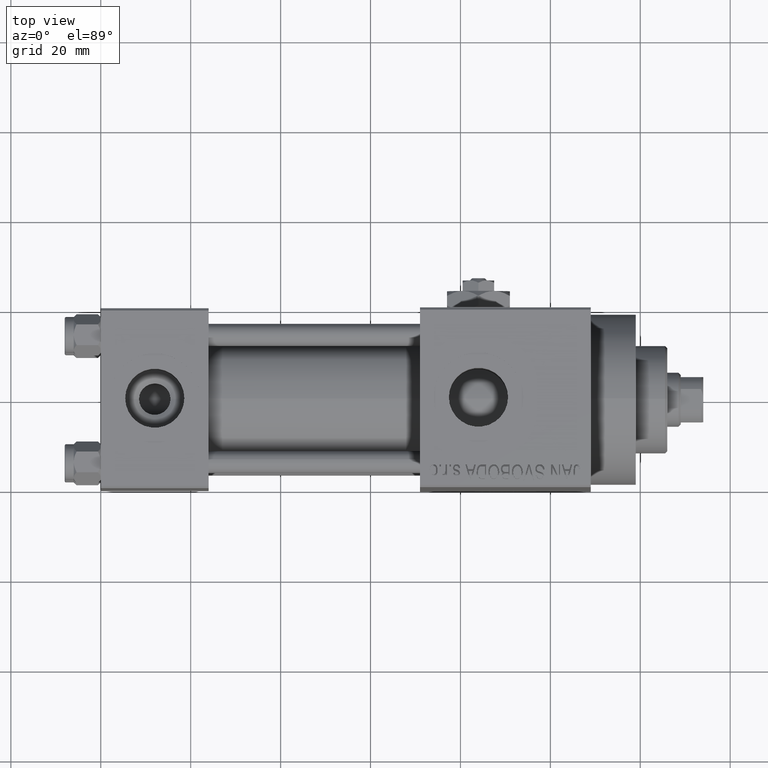
[diagram: clean part render]
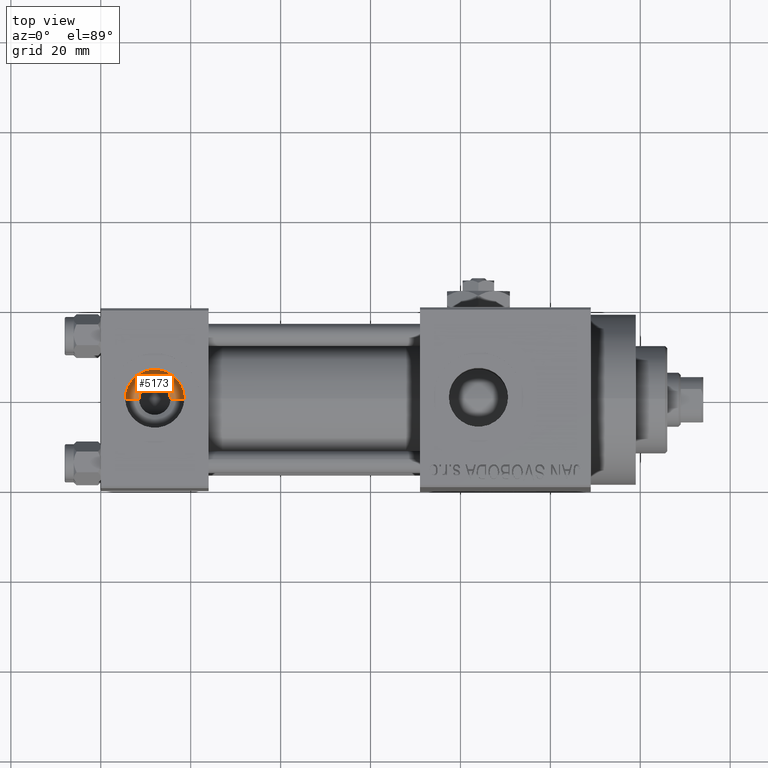
[diagram: same view with one face highlighted and labeled with its STEP entity id]
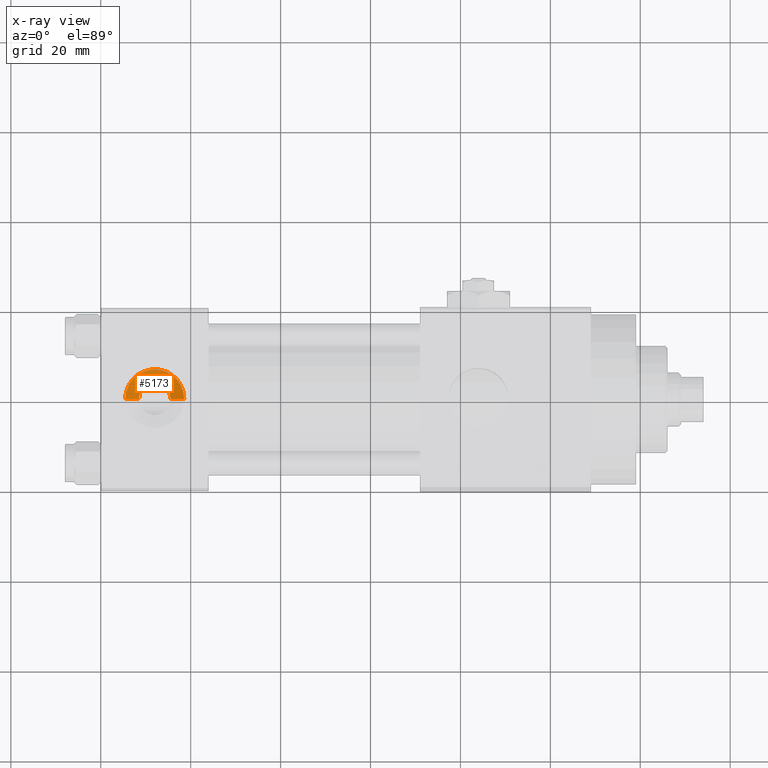
[diagram: x-ray of the same camera — body ghosted, the highlighted face saturated]
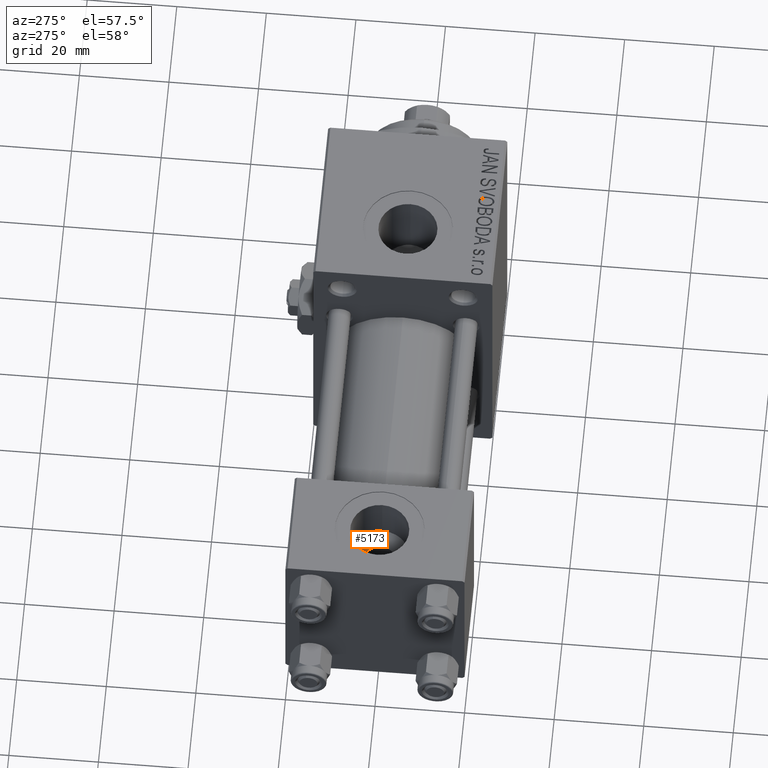
[diagram: same view with one face highlighted and labeled with its STEP entity id]
A machine part, top view. The second image highlights one B-rep face of the part: STEP entity #5173.
The next image is the same camera in x-ray: the body ghosted, the highlighted face saturated — about 0% of this face is hidden behind the body in this view.
A second angle (auxiliary view) of the same face is appended — the face is thin or edge-on in the first view.
In plain terms, the highlighted conical surface has half-angle 60.452 deg.
Its self-contained STEP definition (entity closure, byte-faithful):
#546 = CARTESIAN_POINT ( 'NONE',  ( 12.00000000000000000, 1.540743955509788682E-30, 7.419999999999996376 ) ) ;
#712 = CARTESIAN_POINT ( 'NONE',  ( 8.500000000000000000, 4.286263797015752865E-16, 7.419999999999996376 ) ) ;
#3281 = DIRECTION ( 'NONE',  ( 1.000000000000000000, 0.000000000000000000, 0.000000000000000000 ) ) ;
#4262 = EDGE_CURVE ( 'NONE', #39731, #9528, #16680, .T. ) ;
#5173 = ADVANCED_FACE ( 'NONE', ( #40203 ), #18965, .F. ) ;
#8212 = VECTOR ( 'NONE', #31023, 1000.000000000000000 ) ;
#8607 = CARTESIAN_POINT ( 'NONE',  ( 18.57999999999999829, 1.540743955509788682E-30, 9.165987261146492315 ) ) ;
#9499 = CARTESIAN_POINT ( 'NONE',  ( 12.00000000000000000, 1.540743955509788682E-30, 7.419999999999996376 ) ) ;
#9528 = VERTEX_POINT ( 'NONE', #8607 ) ;
#9947 = VERTEX_POINT ( 'NONE', #712 ) ;
#12888 = DIRECTION ( 'NONE',  ( 1.000000000000000000, 0.000000000000000000, 0.000000000000000000 ) ) ;
#13448 = CARTESIAN_POINT ( 'NONE',  ( 15.50000000000000000, 1.540743955509788682E-30, 7.419999999999996376 ) ) ;
#14120 = CARTESIAN_POINT ( 'NONE',  ( 12.00000000000000000, 1.540743955509788682E-30, 9.165987261146492315 ) ) ;
#15180 = LINE ( 'NONE', #30295, #8212 ) ;
#16363 = DIRECTION ( 'NONE',  ( 0.000000000000000000, 0.000000000000000000, 1.000000000000000000 ) ) ;
#16680 = LINE ( 'NONE', #13448, #34764 ) ;
#16683 = CARTESIAN_POINT ( 'NONE',  ( 15.50000000000000000, 1.540743955509788682E-30, 7.419999999999996376 ) ) ;
#17668 = EDGE_CURVE ( 'NONE', #9947, #31447, #15180, .T. ) ;
#18965 = CONICAL_SURFACE ( 'NONE', #43485, 3.499999999999999556, 1.055086625138361267 ) ;
#20877 = DIRECTION ( 'NONE',  ( 0.8699429503561852961, 0.000000000000000000, 0.4931523731318503412 ) ) ;
#23676 = EDGE_CURVE ( 'NONE', #31447, #9528, #38373, .T. ) ;
#26274 = DIRECTION ( 'NONE',  ( -0.000000000000000000, -0.000000000000000000, -1.000000000000000000 ) ) ;
#29746 = ORIENTED_EDGE ( 'NONE', *, *, #31973, .F. ) ;
#30295 = CARTESIAN_POINT ( 'NONE',  ( 8.500000000000000000, 4.286263797015751879E-16, 7.419999999999996376 ) ) ;
#31023 = DIRECTION ( 'NONE',  ( -0.8699429503561852961, 1.065372849594507103E-16, 0.4931523731318503412 ) ) ;
#31447 = VERTEX_POINT ( 'NONE', #47899 ) ;
#31973 = EDGE_CURVE ( 'NONE', #39731, #9947, #42254, .T. ) ;
#32538 = DIRECTION ( 'NONE',  ( 0.000000000000000000, 0.000000000000000000, 1.000000000000000000 ) ) ;
#34764 = VECTOR ( 'NONE', #20877, 1000.000000000000000 ) ;
#36258 = ORIENTED_EDGE ( 'NONE', *, *, #23676, .F. ) ;
#36863 = EDGE_LOOP ( 'NONE', ( #39861, #29746, #37888, #36258 ) ) ;
#37152 = DIRECTION ( 'NONE',  ( 1.000000000000000000, 0.000000000000000000, 0.000000000000000000 ) ) ;
#37888 = ORIENTED_EDGE ( 'NONE', *, *, #4262, .T. ) ;
#38373 = CIRCLE ( 'NONE', #45468, 6.579999999999999183 ) ;
#39731 = VERTEX_POINT ( 'NONE', #16683 ) ;
#39861 = ORIENTED_EDGE ( 'NONE', *, *, #17668, .F. ) ;
#40203 = FACE_OUTER_BOUND ( 'NONE', #36863, .T. ) ;
#42254 = CIRCLE ( 'NONE', #43795, 3.499999999999999556 ) ;
#43485 = AXIS2_PLACEMENT_3D ( 'NONE', #9499, #32538, #3281 ) ;
#43795 = AXIS2_PLACEMENT_3D ( 'NONE', #546, #16363, #12888 ) ;
#45468 = AXIS2_PLACEMENT_3D ( 'NONE', #14120, #26274, #37152 ) ;
#47899 = CARTESIAN_POINT ( 'NONE',  ( 5.420000000000000817, 8.058175938389596335E-16, 9.165987261146492315 ) ) ;